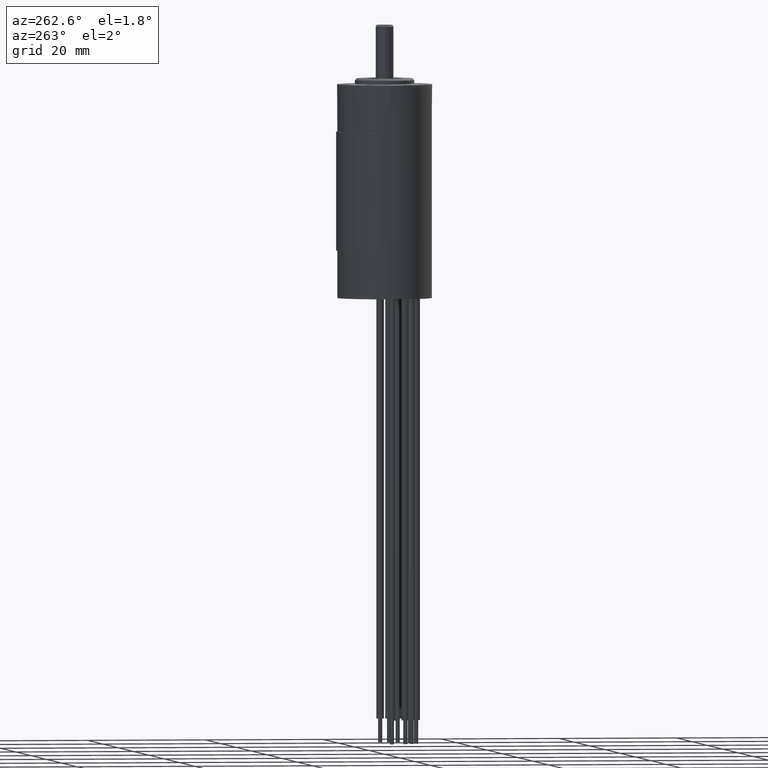
[diagram: clean part render]
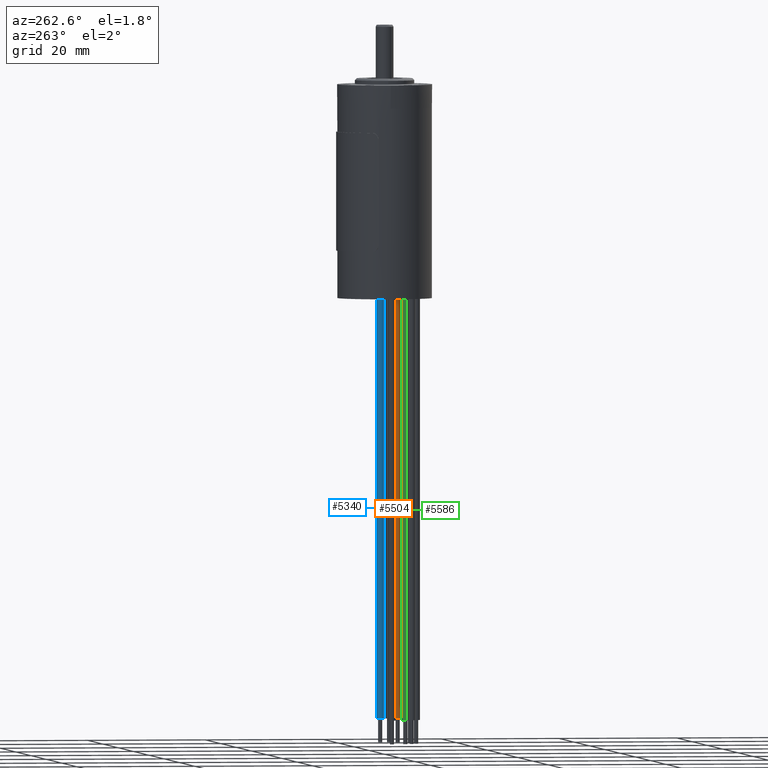
[diagram: same view with three faces highlighted in distinct colors, each labeled with its STEP entity id]
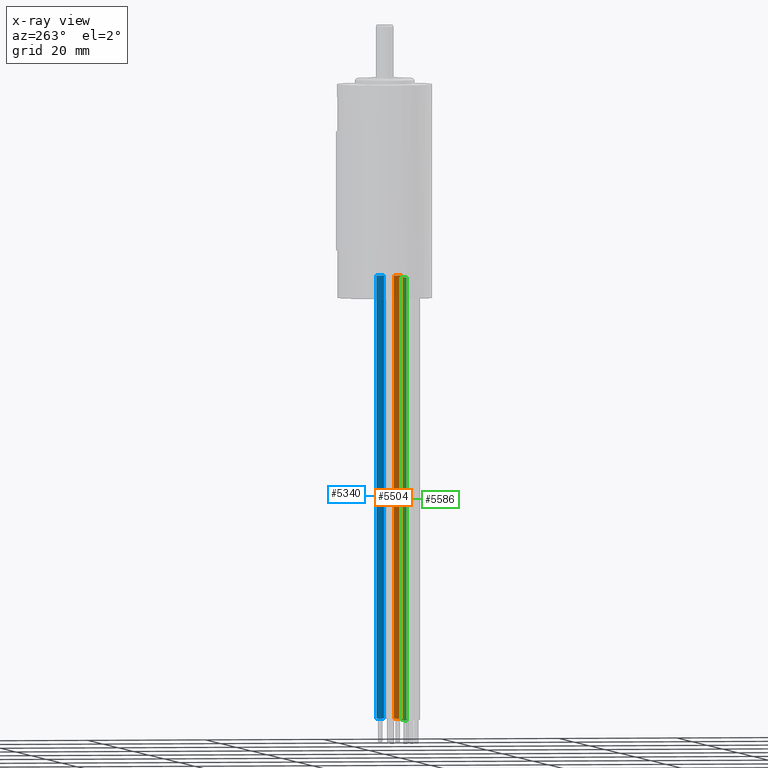
[diagram: x-ray of the same camera — body ghosted, the three highlighted faces saturated]
A machine part, auxiliary view with three faces highlighted in distinct colors.
The next image is the same camera in x-ray (body ghosted, the three faces saturated) — at least one of them is partly hidden behind the body in this view.
Their STEP definitions:

[orange] entity #5504 — the highlighted cylindrical surface (edge-blend (fillet) strip) has radius 0.65 mm, axis along (0, 0, 1).
#748=CARTESIAN_POINT('',(4.979646071761E0,-2.875E0,2.6E0));
#749=DIRECTION('',(0.E0,0.E0,1.E0));
#750=DIRECTION('',(0.E0,1.E0,0.E0));
#751=AXIS2_PLACEMENT_3D('',#748,#749,#750);
#1693=DIRECTION('',(0.E0,0.E0,-1.E0));
#1694=VECTOR('',#1693,7.46E1);
#1695=CARTESIAN_POINT('',(4.979646071761E0,-2.225E0,2.6E0));
#1696=LINE('',#1695,#1694);
#1697=DIRECTION('',(0.E0,0.E0,1.E0));
#1698=VECTOR('',#1697,7.46E1);
#1699=CARTESIAN_POINT('',(4.979646071761E0,-3.525E0,-7.2E1));
#1700=LINE('',#1699,#1698);
#1701=CARTESIAN_POINT('',(4.979646071761E0,-2.875E0,-7.2E1));
#1702=DIRECTION('',(0.E0,0.E0,1.E0));
#1703=DIRECTION('',(0.E0,1.E0,0.E0));
#1704=AXIS2_PLACEMENT_3D('',#1701,#1702,#1703);
#3102=CARTESIAN_POINT('',(4.979646071761E0,-2.225E0,-7.2E1));
#3103=CARTESIAN_POINT('',(4.979646071761E0,-3.525E0,-7.2E1));
#3104=VERTEX_POINT('',#3102);
#3105=VERTEX_POINT('',#3103);
#3453=CARTESIAN_POINT('',(4.979646071761E0,-2.225E0,2.6E0));
#3454=CARTESIAN_POINT('',(4.979646071761E0,-3.525E0,2.6E0));
#3455=VERTEX_POINT('',#3453);
#3456=VERTEX_POINT('',#3454);
#5490=CARTESIAN_POINT('',(4.979646071761E0,-2.875E0,-7.3492E1));
#5491=DIRECTION('',(0.E0,0.E0,1.E0));
#5492=DIRECTION('',(0.E0,1.E0,0.E0));
#5493=AXIS2_PLACEMENT_3D('',#5490,#5491,#5492);
#5494=CYLINDRICAL_SURFACE('',#5493,6.5E-1);
#5495=ORIENTED_EDGE('',*,*,#4388,.T.);
#5497=ORIENTED_EDGE('',*,*,#5496,.F.);
#5499=ORIENTED_EDGE('',*,*,#5498,.F.);
#5501=ORIENTED_EDGE('',*,*,#5500,.F.);
#5502=EDGE_LOOP('',(#5495,#5497,#5499,#5501));
#5503=FACE_OUTER_BOUND('',#5502,.F.);
#5504=ADVANCED_FACE('',(#5503),#5494,.T.);
#752=CIRCLE('',#751,6.5E-1);
#1705=CIRCLE('',#1704,6.5E-1);
#4388=EDGE_CURVE('',#3455,#3456,#752,.T.);
#5496=EDGE_CURVE('',#3105,#3456,#1700,.T.);
#5498=EDGE_CURVE('',#3104,#3105,#1705,.T.);
#5500=EDGE_CURVE('',#3455,#3104,#1696,.T.);

[blue] entity #5340 — the highlighted cylindrical surface (edge-blend (fillet) strip) has radius 0.65 mm, axis along (0, 0, 1).
#728=CARTESIAN_POINT('',(5.75E0,1.890964431583E-14,2.6E0));
#729=DIRECTION('',(0.E0,0.E0,1.E0));
#730=DIRECTION('',(0.E0,1.E0,0.E0));
#731=AXIS2_PLACEMENT_3D('',#728,#729,#730);
#1601=DIRECTION('',(0.E0,0.E0,-1.E0));
#1602=VECTOR('',#1601,7.46E1);
#1603=CARTESIAN_POINT('',(5.75E0,6.5E-1,2.6E0));
#1604=LINE('',#1603,#1602);
#1605=DIRECTION('',(0.E0,0.E0,1.E0));
#1606=VECTOR('',#1605,7.46E1);
#1607=CARTESIAN_POINT('',(5.75E0,-6.5E-1,-7.2E1));
#1608=LINE('',#1607,#1606);
#1609=CARTESIAN_POINT('',(5.75E0,2.809260301837E-14,-7.2E1));
#1610=DIRECTION('',(0.E0,0.E0,1.E0));
#1611=DIRECTION('',(0.E0,1.E0,0.E0));
#1612=AXIS2_PLACEMENT_3D('',#1609,#1610,#1611);
#3078=CARTESIAN_POINT('',(5.75E0,6.5E-1,-7.2E1));
#3079=CARTESIAN_POINT('',(5.75E0,-6.499999999999E-1,-7.2E1));
#3080=VERTEX_POINT('',#3078);
#3081=VERTEX_POINT('',#3079);
#3445=CARTESIAN_POINT('',(5.75E0,6.5E-1,2.6E0));
#3446=CARTESIAN_POINT('',(5.75E0,-6.5E-1,2.6E0));
#3447=VERTEX_POINT('',#3445);
#3448=VERTEX_POINT('',#3446);
#5326=CARTESIAN_POINT('',(5.75E0,2.827626219242E-14,-7.3492E1));
#5327=DIRECTION('',(0.E0,0.E0,1.E0));
#5328=DIRECTION('',(0.E0,1.E0,0.E0));
#5329=AXIS2_PLACEMENT_3D('',#5326,#5327,#5328);
#5330=CYLINDRICAL_SURFACE('',#5329,6.5E-1);
#5331=ORIENTED_EDGE('',*,*,#4376,.T.);
#5333=ORIENTED_EDGE('',*,*,#5332,.F.);
#5335=ORIENTED_EDGE('',*,*,#5334,.F.);
#5337=ORIENTED_EDGE('',*,*,#5336,.F.);
#5338=EDGE_LOOP('',(#5331,#5333,#5335,#5337));
#5339=FACE_OUTER_BOUND('',#5338,.F.);
#5340=ADVANCED_FACE('',(#5339),#5330,.T.);
#732=CIRCLE('',#731,6.5E-1);
#1613=CIRCLE('',#1612,6.5E-1);
#4376=EDGE_CURVE('',#3447,#3448,#732,.T.);
#5332=EDGE_CURVE('',#3081,#3448,#1608,.T.);
#5334=EDGE_CURVE('',#3080,#3081,#1613,.T.);
#5336=EDGE_CURVE('',#3447,#3080,#1604,.T.);

[green] entity #5586 — the highlighted cylindrical surface (edge-blend (fillet) strip) has radius 0.65 mm, axis along (0, 0, 1).
#758=CARTESIAN_POINT('',(-4.979646071761E0,-2.875E0,2.6E0));
#759=DIRECTION('',(0.E0,0.E0,1.E0));
#760=DIRECTION('',(9.751700426194E-1,2.214574179783E-1,0.E0));
#761=AXIS2_PLACEMENT_3D('',#758,#759,#760);
#1739=DIRECTION('',(0.E0,0.E0,-1.E0));
#1740=VECTOR('',#1739,7.46E1);
#1741=CARTESIAN_POINT('',(-4.345785544058E0,-2.731052678314E0,2.6E0));
#1742=LINE('',#1741,#1740);
#1743=DIRECTION('',(0.E0,0.E0,1.E0));
#1744=VECTOR('',#1743,7.46E1);
#1745=CARTESIAN_POINT('',(-5.613506599464E0,-3.018947321686E0,-7.2E1));
#1746=LINE('',#1745,#1744);
#1747=CARTESIAN_POINT('',(-4.979646071761E0,-2.875E0,-7.2E1));
#1748=DIRECTION('',(0.E0,0.E0,1.E0));
#1749=DIRECTION('',(9.751700426195E-1,2.214574179779E-1,0.E0));
#1750=AXIS2_PLACEMENT_3D('',#1747,#1748,#1749);
#3114=CARTESIAN_POINT('',(-4.345785544058E0,-2.731052678314E0,-7.2E1));
#3115=CARTESIAN_POINT('',(-5.613506599464E0,-3.018947321686E0,-7.2E1));
#3116=VERTEX_POINT('',#3114);
#3117=VERTEX_POINT('',#3115);
#3457=CARTESIAN_POINT('',(-4.345785544058E0,-2.731052678314E0,2.6E0));
#3458=CARTESIAN_POINT('',(-5.613506599464E0,-3.018947321686E0,2.6E0));
#3459=VERTEX_POINT('',#3457);
#3460=VERTEX_POINT('',#3458);
#5572=CARTESIAN_POINT('',(-4.979646071761E0,-2.875E0,-7.3492E1));
#5573=DIRECTION('',(0.E0,0.E0,1.E0));
#5574=DIRECTION('',(9.751700426194E-1,2.214574179783E-1,0.E0));
#5575=AXIS2_PLACEMENT_3D('',#5572,#5573,#5574);
#5576=CYLINDRICAL_SURFACE('',#5575,6.500000000004E-1);
#5577=ORIENTED_EDGE('',*,*,#4394,.T.);
#5579=ORIENTED_EDGE('',*,*,#5578,.F.);
#5581=ORIENTED_EDGE('',*,*,#5580,.F.);
#5583=ORIENTED_EDGE('',*,*,#5582,.F.);
#5584=EDGE_LOOP('',(#5577,#5579,#5581,#5583));
#5585=FACE_OUTER_BOUND('',#5584,.F.);
#5586=ADVANCED_FACE('',(#5585),#5576,.T.);
#762=CIRCLE('',#761,6.500000000004E-1);
#1751=CIRCLE('',#1750,6.500000000004E-1);
#4394=EDGE_CURVE('',#3459,#3460,#762,.T.);
#5578=EDGE_CURVE('',#3117,#3460,#1746,.T.);
#5580=EDGE_CURVE('',#3116,#3117,#1751,.T.);
#5582=EDGE_CURVE('',#3459,#3116,#1742,.T.);